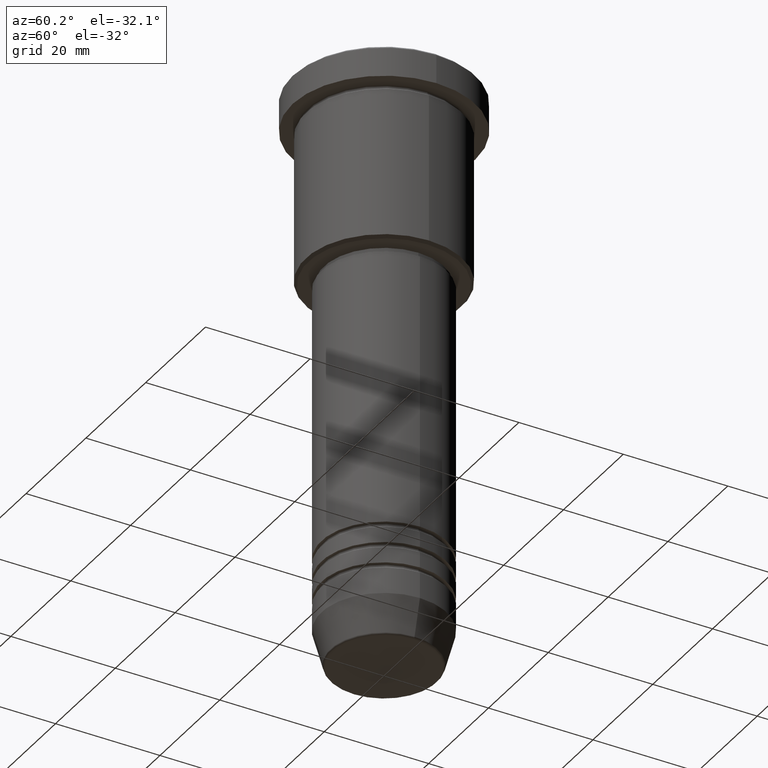
[diagram: clean part render]
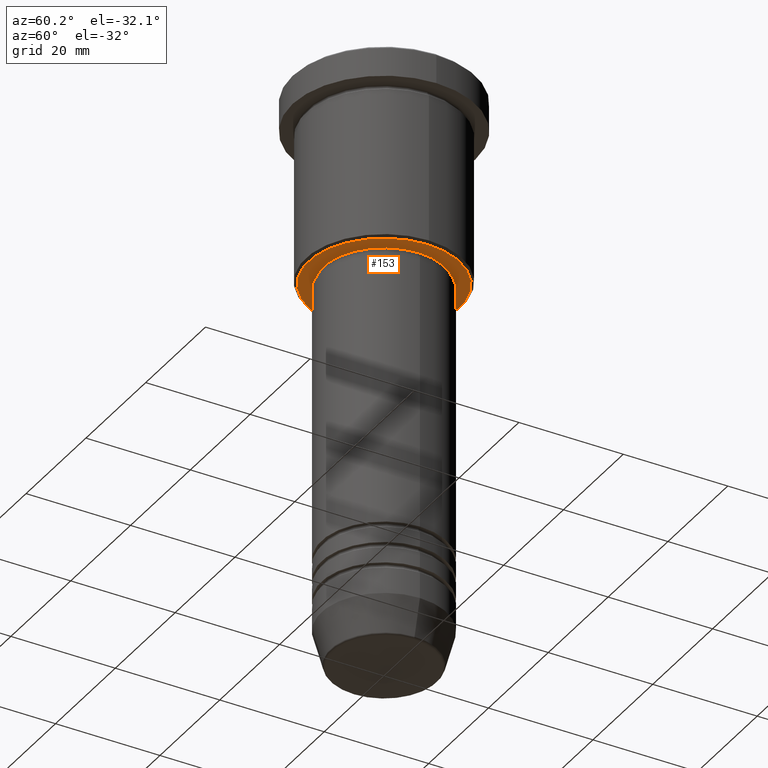
[diagram: same view with one face highlighted and labeled with its STEP entity id]
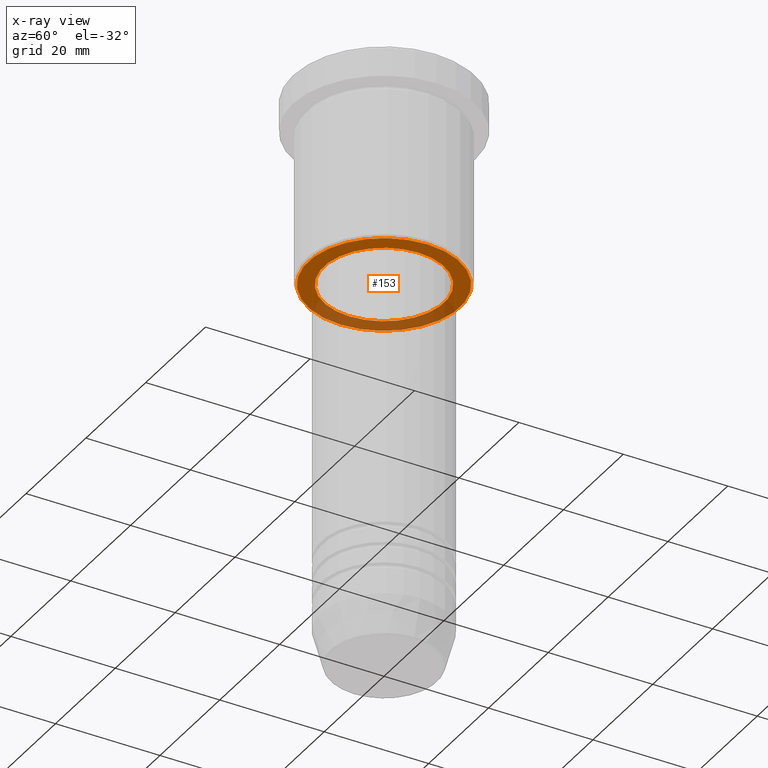
[diagram: x-ray of the same camera — body ghosted, the highlighted face saturated]
A machine part, auxiliary view. The second image highlights one B-rep face of the part: STEP entity #153.
The next image is the same camera in x-ray: the body ghosted, the highlighted face saturated — about 33% of this face is hidden behind the body in this view.
In plain terms, the highlighted planar face has unit normal (0, 0, -1).
Its self-contained STEP definition (entity closure, byte-faithful):
#8 = PLANE ( 'NONE',  #595 ) ;
#65 = CARTESIAN_POINT ( 'NONE',  ( 0.000000000000000000, 0.000000000000000000, -36.00000000000000000 ) ) ;
#80 = DIRECTION ( 'NONE',  ( -1.000000000000000000, 0.000000000000000000, 0.000000000000000000 ) ) ;
#96 = FACE_OUTER_BOUND ( 'NONE', #860, .T. ) ;
#127 = EDGE_CURVE ( 'NONE', #321, #193, #728, .T. ) ;
#153 = ADVANCED_FACE ( 'NONE', ( #96, #475 ), #8, .T. ) ;
#162 = DIRECTION ( 'NONE',  ( -0.000000000000000000, -0.000000000000000000, 1.000000000000000000 ) ) ;
#193 = VERTEX_POINT ( 'NONE', #1042 ) ;
#253 = CARTESIAN_POINT ( 'NONE',  ( 0.000000000000000000, 0.000000000000000000, -36.00000000000000000 ) ) ;
#268 = ORIENTED_EDGE ( 'NONE', *, *, #1046, .T. ) ;
#272 = AXIS2_PLACEMENT_3D ( 'NONE', #1100, #162, #550 ) ;
#321 = VERTEX_POINT ( 'NONE', #901 ) ;
#329 = DIRECTION ( 'NONE',  ( 0.000000000000000000, 0.000000000000000000, -1.000000000000000000 ) ) ;
#384 = DIRECTION ( 'NONE',  ( 0.000000000000000000, 0.000000000000000000, -1.000000000000000000 ) ) ;
#393 = EDGE_LOOP ( 'NONE', ( #917, #1106 ) ) ;
#475 = FACE_BOUND ( 'NONE', #393, .T. ) ;
#494 = VERTEX_POINT ( 'NONE', #942 ) ;
#550 = DIRECTION ( 'NONE',  ( 1.000000000000000000, 0.000000000000000000, 0.000000000000000000 ) ) ;
#575 = DIRECTION ( 'NONE',  ( -1.000000000000000000, 0.000000000000000000, -0.000000000000000000 ) ) ;
#595 = AXIS2_PLACEMENT_3D ( 'NONE', #830, #384, #575 ) ;
#600 = CIRCLE ( 'NONE', #272, 11.50000000000000000 ) ;
#634 = CARTESIAN_POINT ( 'NONE',  ( -11.50000000000000000, 1.408343819019456176E-15, -36.00000000000000000 ) ) ;
#652 = AXIS2_PLACEMENT_3D ( 'NONE', #253, #811, #80 ) ;
#701 = CARTESIAN_POINT ( 'NONE',  ( 0.000000000000000000, 0.000000000000000000, -36.00000000000000000 ) ) ;
#712 = CIRCLE ( 'NONE', #1092, 11.50000000000000000 ) ;
#728 = CIRCLE ( 'NONE', #652, 14.49999999999999645 ) ;
#801 = DIRECTION ( 'NONE',  ( 1.000000000000000000, 0.000000000000000000, 0.000000000000000000 ) ) ;
#803 = CIRCLE ( 'NONE', #977, 14.49999999999999645 ) ;
#810 = EDGE_CURVE ( 'NONE', #1111, #494, #600, .T. ) ;
#811 = DIRECTION ( 'NONE',  ( 0.000000000000000000, 0.000000000000000000, -1.000000000000000000 ) ) ;
#822 = DIRECTION ( 'NONE',  ( -0.000000000000000000, -0.000000000000000000, 1.000000000000000000 ) ) ;
#830 = CARTESIAN_POINT ( 'NONE',  ( 0.000000000000000000, 15.00000000000000000, -36.00000000000000000 ) ) ;
#835 = EDGE_CURVE ( 'NONE', #494, #1111, #712, .T. ) ;
#860 = EDGE_LOOP ( 'NONE', ( #268, #1017 ) ) ;
#891 = DIRECTION ( 'NONE',  ( -1.000000000000000000, 0.000000000000000000, 0.000000000000000000 ) ) ;
#901 = CARTESIAN_POINT ( 'NONE',  ( -14.49999999999999645, 1.806354028742345802E-15, -36.00000000000000000 ) ) ;
#917 = ORIENTED_EDGE ( 'NONE', *, *, #835, .T. ) ;
#942 = CARTESIAN_POINT ( 'NONE',  ( 11.50000000000000000, 0.000000000000000000, -36.00000000000000000 ) ) ;
#977 = AXIS2_PLACEMENT_3D ( 'NONE', #701, #329, #891 ) ;
#1017 = ORIENTED_EDGE ( 'NONE', *, *, #127, .T. ) ;
#1042 = CARTESIAN_POINT ( 'NONE',  ( 14.49999999999999645, 0.000000000000000000, -36.00000000000000000 ) ) ;
#1046 = EDGE_CURVE ( 'NONE', #193, #321, #803, .T. ) ;
#1092 = AXIS2_PLACEMENT_3D ( 'NONE', #65, #822, #801 ) ;
#1100 = CARTESIAN_POINT ( 'NONE',  ( 0.000000000000000000, 0.000000000000000000, -36.00000000000000000 ) ) ;
#1106 = ORIENTED_EDGE ( 'NONE', *, *, #810, .T. ) ;
#1111 = VERTEX_POINT ( 'NONE', #634 ) ;